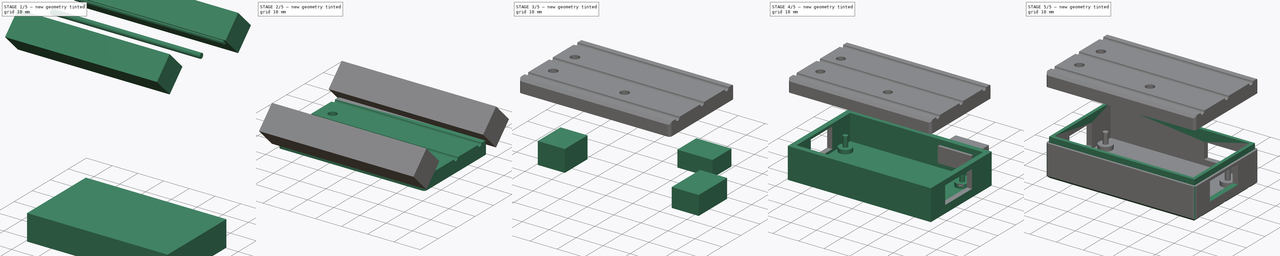
[diagram: build sequence overview — one tinted view per stage of 5, left to right]
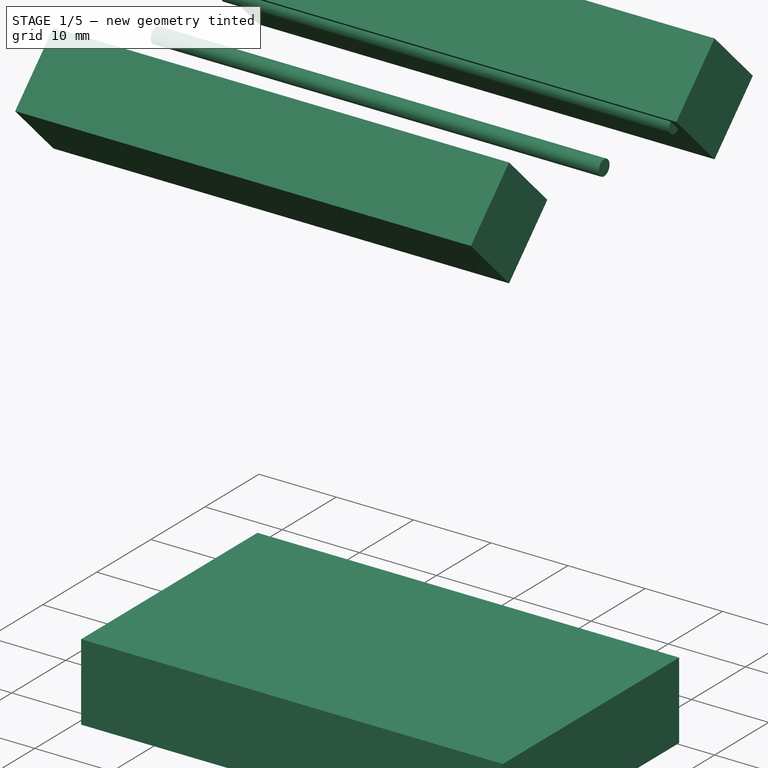
[diagram: stage 1 of 5 — iso view after this stage's code; geometry added in this stage tinted green]
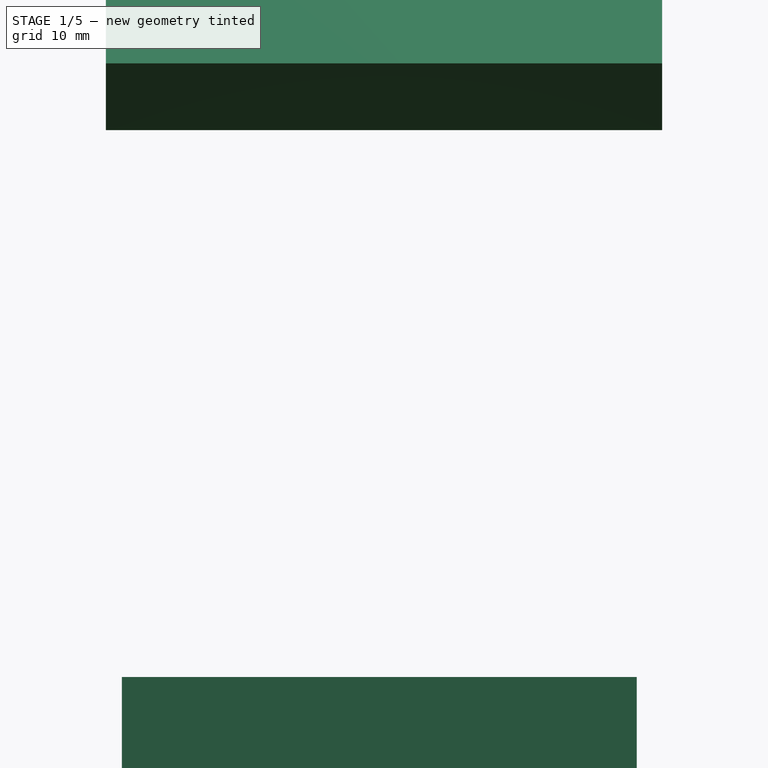
[diagram: stage 1 of 5 — front view after this stage's code; geometry added in this stage tinted green]
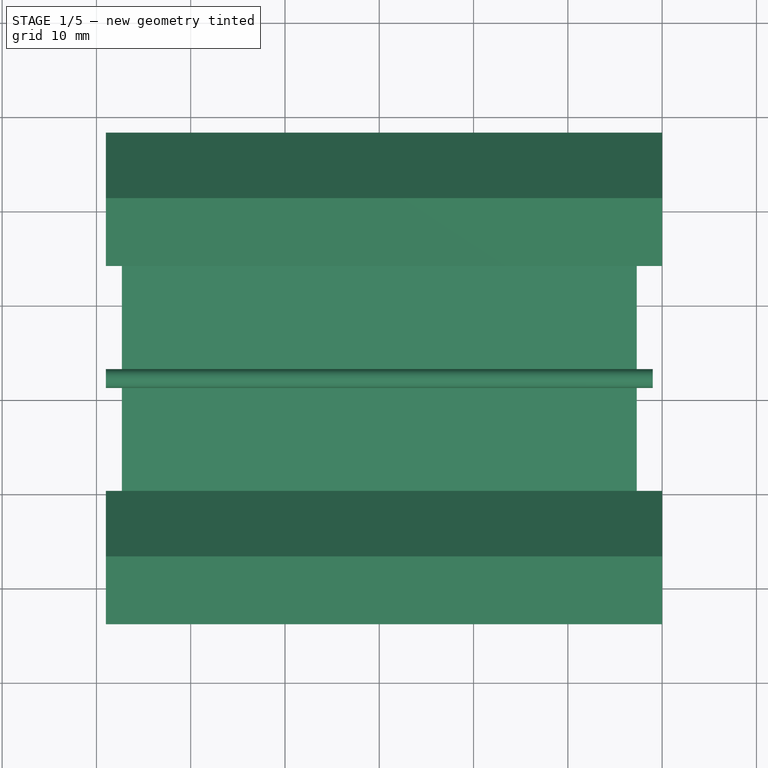
[diagram: stage 1 of 5 — top view after this stage's code; geometry added in this stage tinted green]
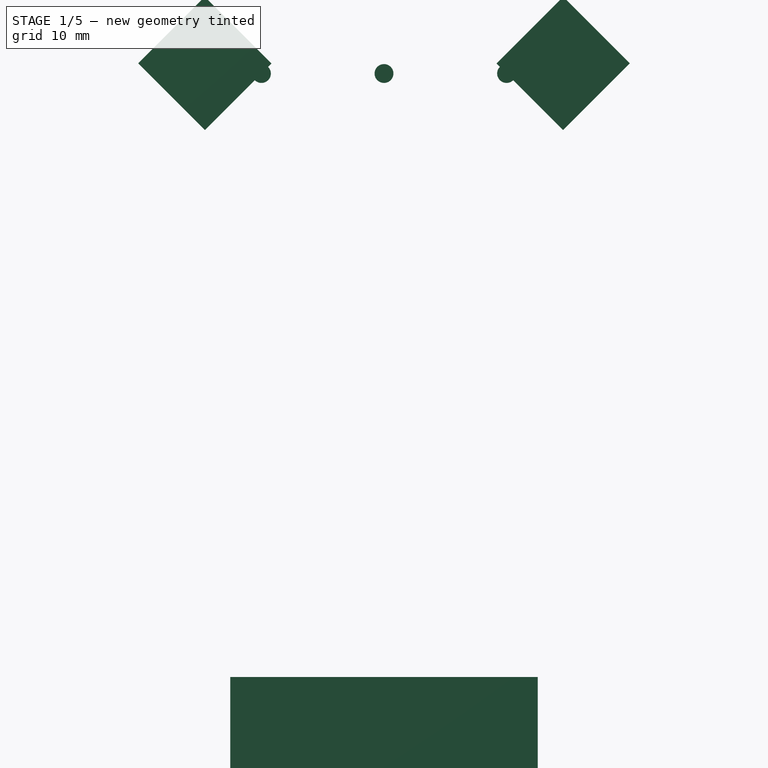
[diagram: stage 1 of 5 — right view after this stage's code; geometry added in this stage tinted green]
FCSTD DOCUMENT  (FreeCAD 0.16R6647 (Git))
Label: DataloggerCase
License: CreativeCommons Attribution-ShareAlike
LicenseURL: http://creativecommons.org/licenses/by-sa/4.0/
objects: Part::Cut×8, Part::Feature×7, Part::Box×7, Sketcher::SketchObject×5, PartDesign::Pad×4, Part::MultiFuse×2, Part::Thickness×1, PartDesign::Chamfer×1, PartDesign::Fillet×1, Part::Fillet×1, Part::Cylinder×1, PartDesign::Pocket×1
note: 44 computed .brp shape members not serialized (recipe doc carries the construction recipe); baked Part::Feature solids carry a one-line shape summary decoded from their .brp

FEATURE [Part::Box] Box004  label="Cube004"
  Height = 10
  Length = 54.6
  Placement = pos=(-27.3,-15.3,-40) rot=(0,0,1;0rad)
  Width = 32.6
FEATURE [Part::Cylinder] Cylinder
  Angle = 360
  Height = 58
  Placement = pos=(-29,14,34) rot=(0,1,0;1.5708rad)
  Radius = 1
FEATURE [Part::Feature] Cylinder001
  Placement = pos=(-29,1,34) rot=(0,1,0;1.5708rad)
  shape: bbox 58 x 2 x 2 mm, 3 faces (baked)
FEATURE [Part::Feature] Cylinder002
  Placement = pos=(-29,-12,34) rot=(0,1,0;1.5708rad)
  shape: bbox 58 x 2 x 2 mm, 3 faces (baked)
FEATURE [Part::MultiFuse] Fusion
  Shapes = -> [Cylinder,Cylinder001,Cylinder002]
FEATURE [Part::Box] Box006  label="Cube006"
  Height = 10
  Length = 59
  Placement = pos=(-29,-18,28) rot=(1,0,0;0.785398rad)
  Width = 10
FEATURE [Part::Feature] Box006001  label="Cube007"
  Placement = pos=(-29,20,28) rot=(1,0,0;0.785398rad)
  shape: bbox 59 x 14.14 x 14.14 mm, 6 faces (baked)
FEATURE [Part::MultiFuse] Fusion002
  Shapes = -> [Box006,Box006001]
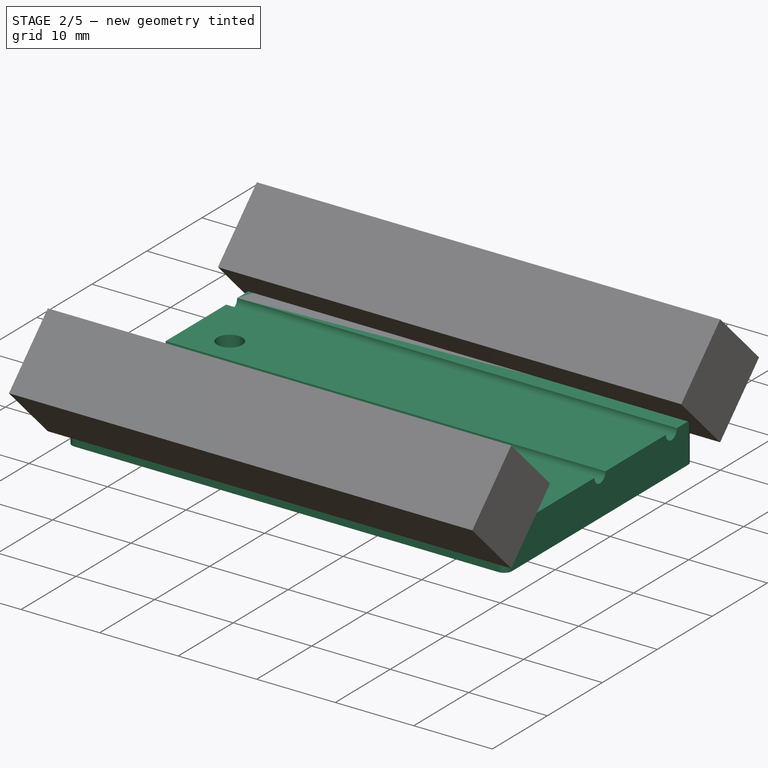
[diagram: stage 2 of 5 — iso view after this stage's code; geometry added in this stage tinted green]
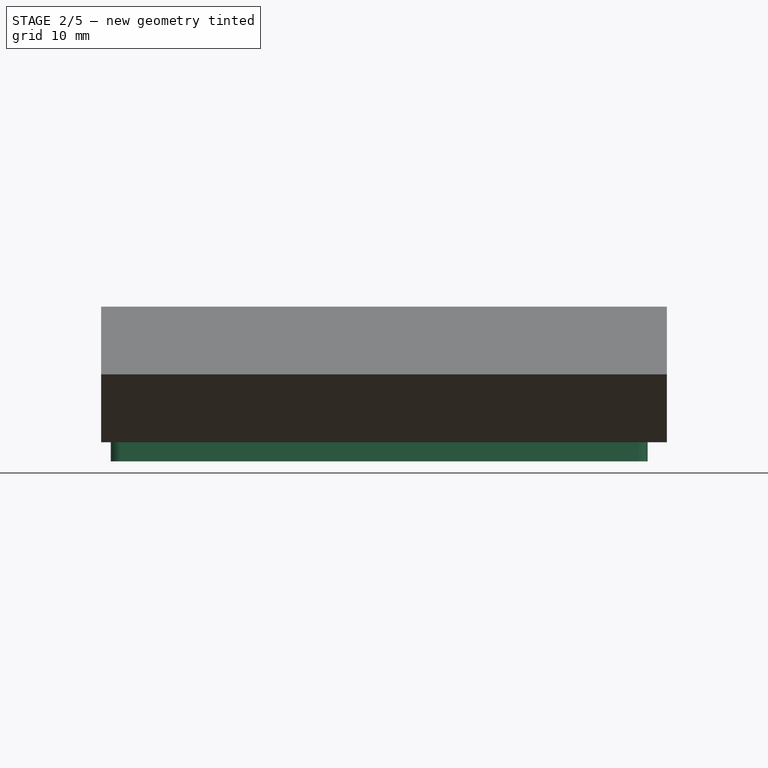
[diagram: stage 2 of 5 — front view after this stage's code; geometry added in this stage tinted green]
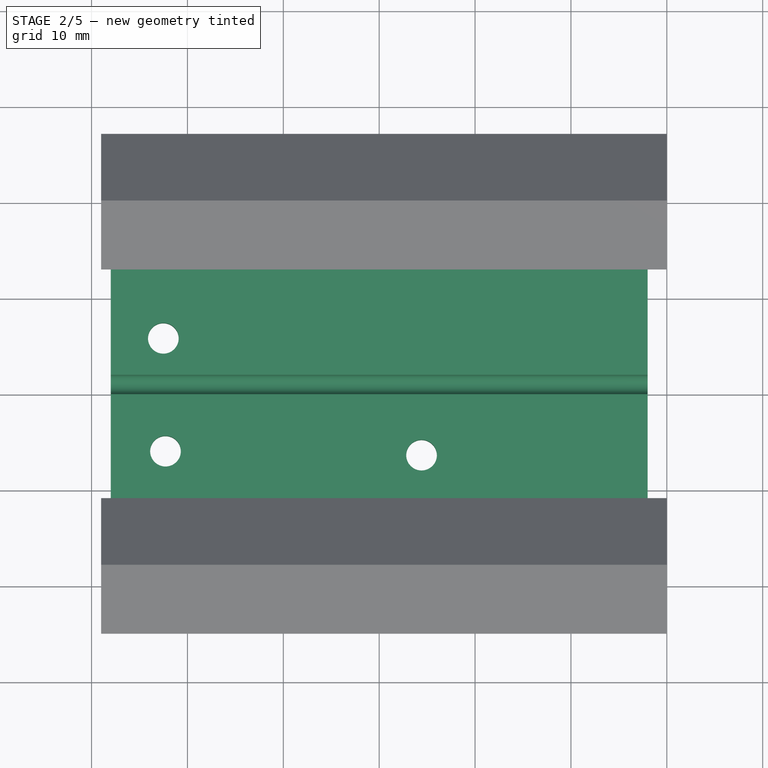
[diagram: stage 2 of 5 — top view after this stage's code; geometry added in this stage tinted green]
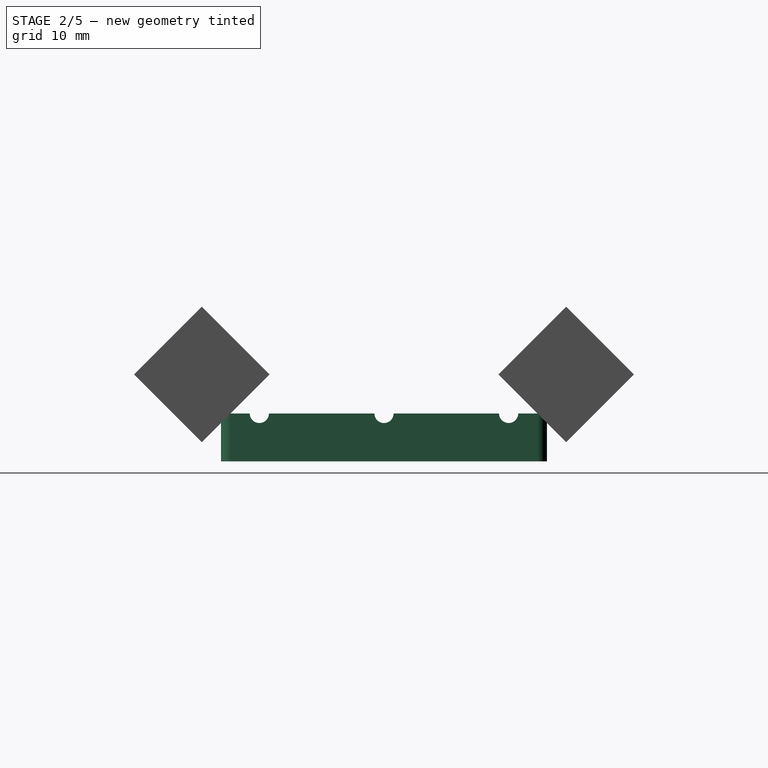
[diagram: stage 2 of 5 — right view after this stage's code; geometry added in this stage tinted green]
FEATURE [Sketcher::SketchObject] Sketch003
  Placement = pos=(0,0,27) rot=(0,0,1;0rad)
  sketch-geometry (9):
    g0: LineSegment [constr] StartX=25.4154 StartY=-6.36439 StartZ=0 EndX=4.41535 EndY=-6.36439 EndZ=0
    g1: LineSegment [constr] StartX=4.41535 StartY=-6.36439 StartZ=0 EndX=4.41535 EndY=-11.3644 EndZ=0
    g2: Circle CenterX=4.41535 CenterY=-6.36439 CenterZ=0 NormalX=0 NormalY=0 NormalZ=1 Radius=1.6
    g3: LineSegment [constr] StartX=-22.5163 StartY=11.3206 StartZ=0 EndX=-22.5163 EndY=5.82063 EndZ=0
    g4: LineSegment [constr] StartX=-22.5163 StartY=5.82063 StartZ=0 EndX=-25.5163 EndY=5.82063 EndZ=0
    g5: Circle CenterX=-22.5163 CenterY=5.82063 CenterZ=0 NormalX=0 NormalY=0 NormalZ=1 Radius=1.6
    g6: LineSegment [constr] StartX=-22.2915 StartY=-11.4521 StartZ=0 EndX=-22.2915 EndY=-5.95211 EndZ=0
    g7: LineSegment [constr] StartX=-22.2915 StartY=-5.95211 StartZ=0 EndX=-25.2915 EndY=-5.95211 EndZ=0
    g8: Circle CenterX=-22.2915 CenterY=-5.95211 CenterZ=0 NormalX=0 NormalY=0 NormalZ=1 Radius=1.6
  constraints (21):
    c: Horizontal(g0)
    c: DistanceX(g0,g0) = 21
    c: Coincident(g1,g0)
    c: Vertical(g1)
    c: DistanceY(g1,g1) = 5
    c: Coincident(g2,g0)
    c: Vertical(g3)
    c: Coincident(g4,g3)
    c: Horizontal(g4)
    c: DistanceY(g3,g3) = 5.5
    c: DistanceX(g4,g4) = 3
    c: Coincident(g5,g3)
    c: Vertical(g6)
    c: Coincident(g7,g6)
    c: Horizontal(g7)
    c: DistanceX(g7,g7) = 3
    c: DistanceY(g6,g6) = 5.5
    c: Coincident(g8,g6)
    c: Radius(g8) = 1.6
    c: Equal(g8,g5)
    c: Equal(g8,g2)
FEATURE [Part::Box] Box003  label="Cube003"
  Height = 5
  Length = 56
  Placement = pos=(-28,-16,-32) rot=(0,0,1;0rad)
  Width = 34
FEATURE [PartDesign::Pad] Pad001004
  Length = 15
  Length2 = 100
  Placement = pos=(0,0,27) rot=(0,0,1;0rad)
  Sketch = -> Sketch003
  Type = 0
FEATURE [Part::Cut] Cut002
  Base = -> Box003
  Tool = -> Box004
FEATURE [Part::Fillet] Fillet001
  Base = -> Cut002
  Edges = 4 edges r=1: [Edge1,Edge3,Edge6,Edge11]
  Placement = pos=(0,0,61) rot=(0,0,1;0rad)
FEATURE [Part::Cut] Cut003
  Base = -> Fillet001
  Tool = -> Pad001004
FEATURE [Part::Cut] Cut004
  Base = -> Cut003
  Placement = pos=(0,0,-3) rot=(0,0,1;0rad)
  Tool = -> Fusion
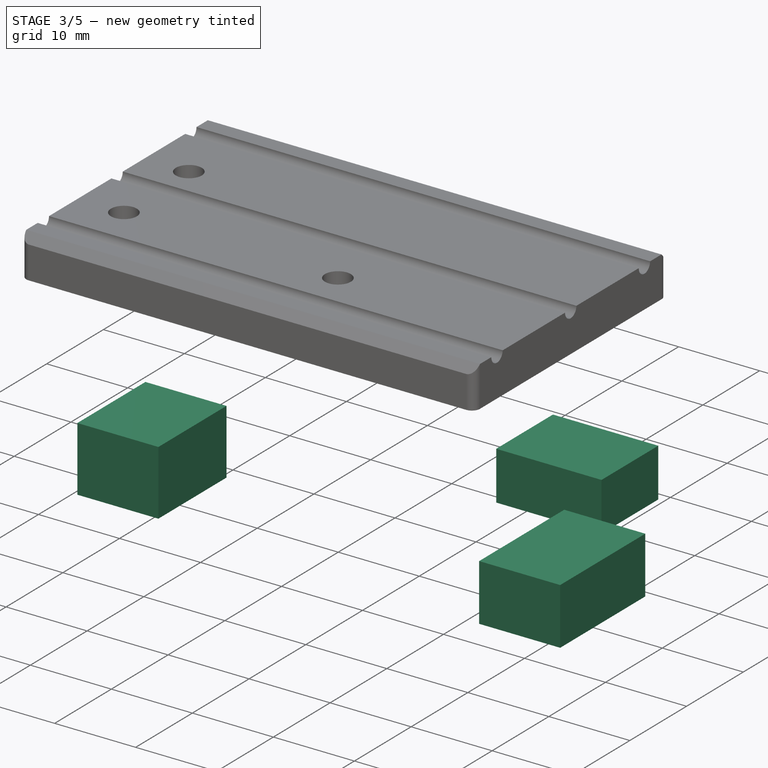
[diagram: stage 3 of 5 — iso view after this stage's code; geometry added in this stage tinted green]
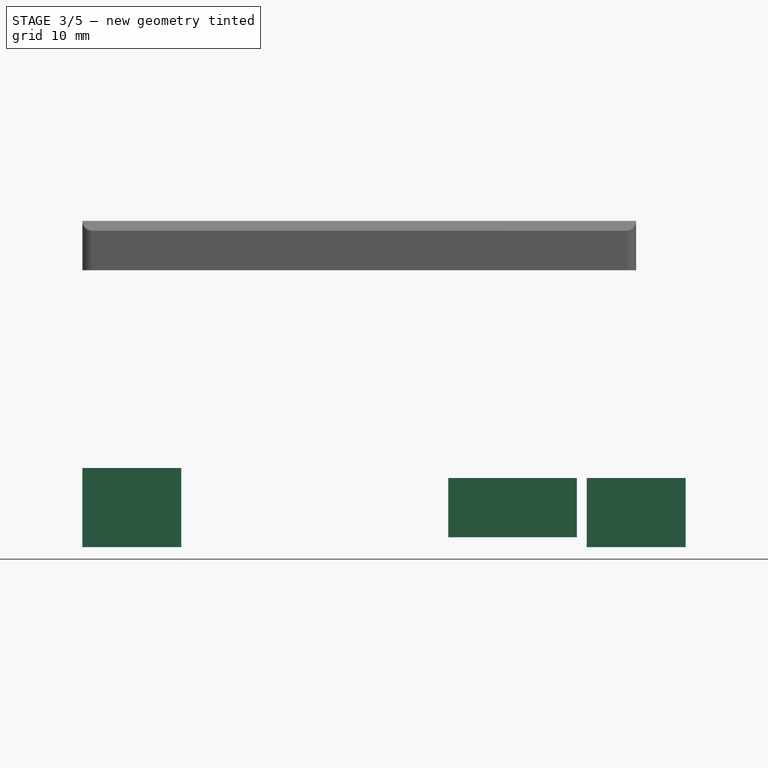
[diagram: stage 3 of 5 — front view after this stage's code; geometry added in this stage tinted green]
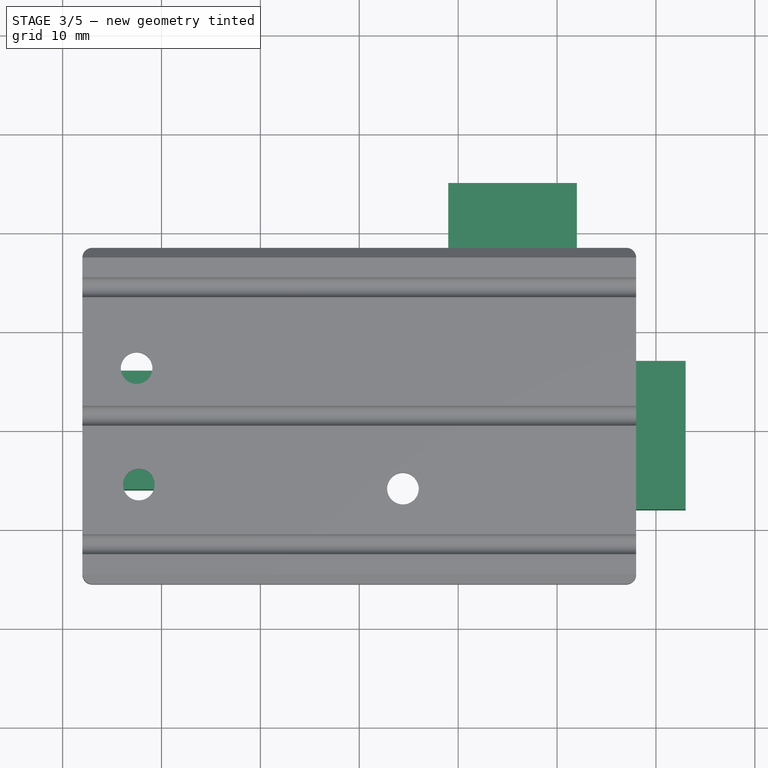
[diagram: stage 3 of 5 — top view after this stage's code; geometry added in this stage tinted green]
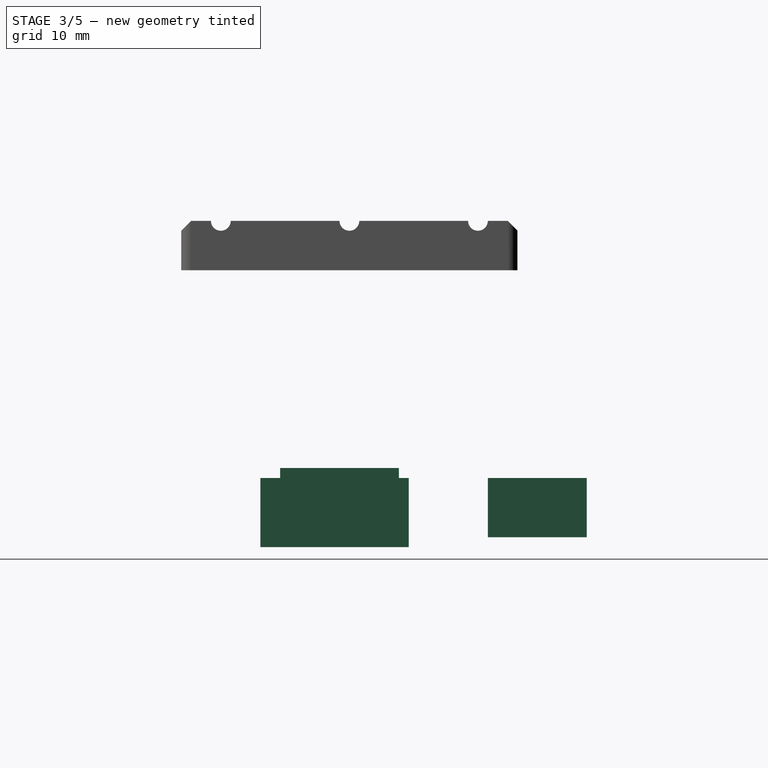
[diagram: stage 3 of 5 — right view after this stage's code; geometry added in this stage tinted green]
FEATURE [Part::Box] Box001  label="Cube001"
  Height = 8
  Length = 10
  Placement = pos=(-28,-6,-2) rot=(0,0,1;0rad)
  Width = 12
FEATURE [Part::Box] Box002  label="Cube002"
  Height = 7
  Length = 10
  Placement = pos=(23,-8,-2) rot=(0,0,1;0rad)
  Width = 15
FEATURE [Part::Box] Box005  label="Cube005"
  Height = 6
  Length = 13
  Placement = pos=(9,15,-1) rot=(0,0,1;0rad)
  Width = 10
FEATURE [Sketcher::SketchObject] Sketch004
  Placement = pos=(0,0,28) rot=(1,0,0;3.14159rad)
  Support = -> Cut004 [Face21]
  sketch-geometry (4):
    g0: LineSegment StartX=-25.6475 StartY=13.4964 StartZ=0 EndX=25.8503 EndY=13.4964 EndZ=0
    g1: LineSegment StartX=25.8503 StartY=13.4964 StartZ=0 EndX=25.8503 EndY=-15.6992 EndZ=0
    g2: LineSegment StartX=25.8503 StartY=-15.6992 StartZ=0 EndX=-25.6475 EndY=-15.6992 EndZ=0
    g3: LineSegment StartX=-25.6475 StartY=-15.6992 StartZ=0 EndX=-25.6475 EndY=13.4964 EndZ=0
  constraints (8):
    c: Coincident(g0,g1)
    c: Coincident(g1,g2)
    c: Coincident(g2,g3)
    c: Coincident(g3,g0)
    c: Horizontal(g0)
    c: Horizontal(g2)
    c: Vertical(g1)
    c: Vertical(g3)
FEATURE [PartDesign::Pocket] Pocket
  Length = 1
  Placement = pos=(0,0,-3) rot=(0,0,1;0rad)
  Sketch = -> Sketch004
  Type = 0
FEATURE [Part::Cut] Cut007
  Base = -> Pocket
  Tool = -> Fusion002
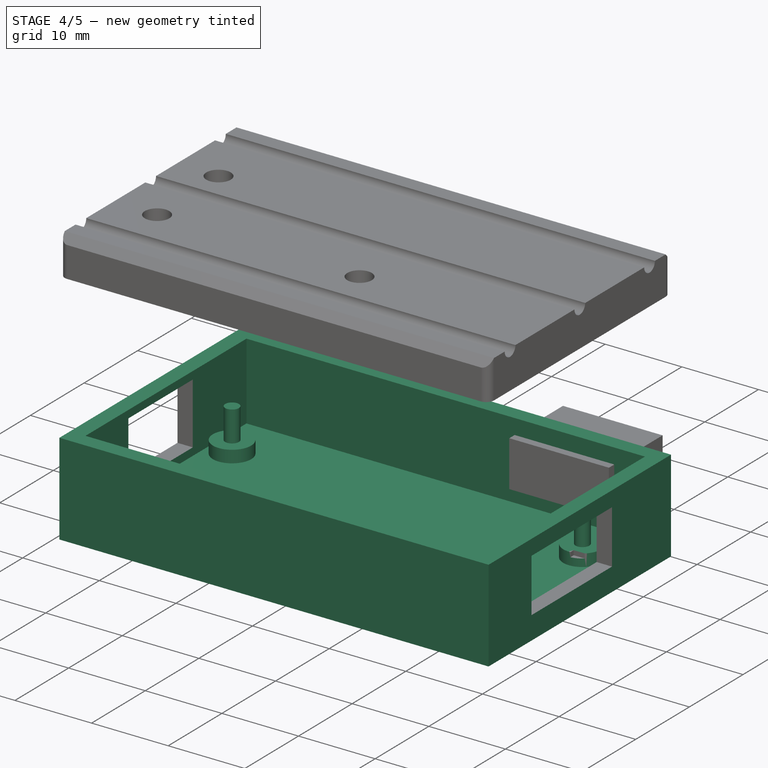
[diagram: stage 4 of 5 — iso view after this stage's code; geometry added in this stage tinted green]
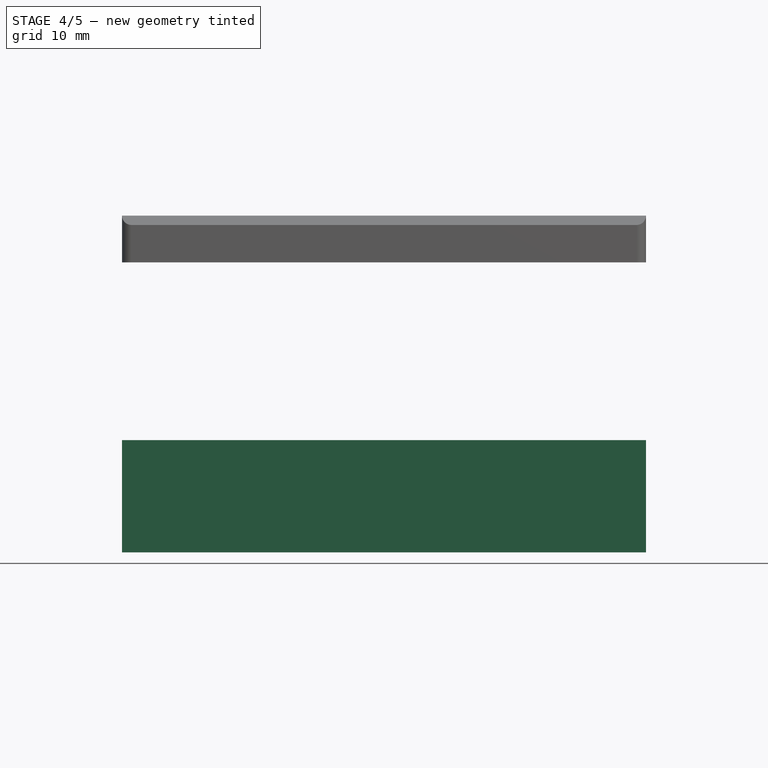
[diagram: stage 4 of 5 — front view after this stage's code; geometry added in this stage tinted green]
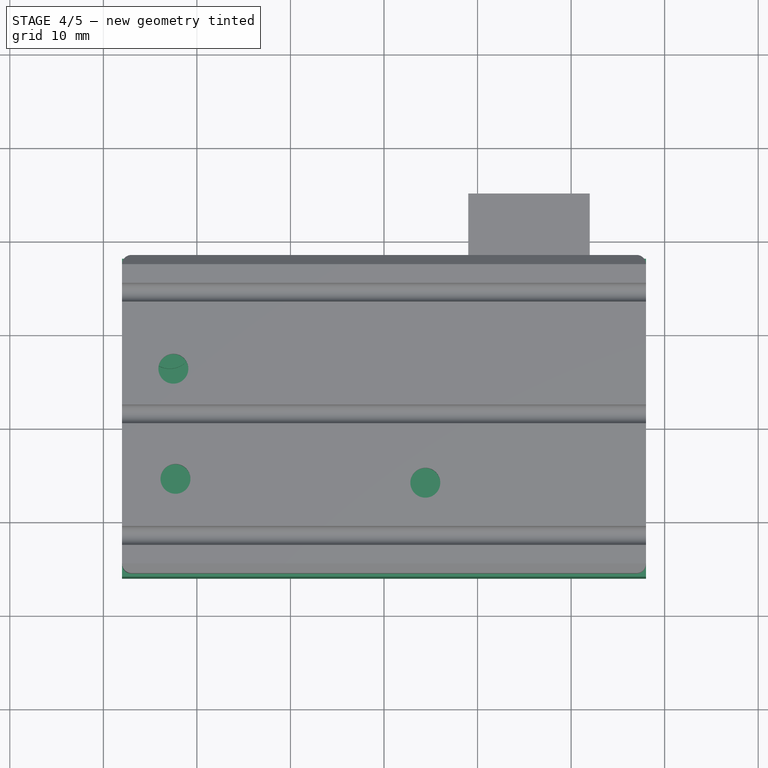
[diagram: stage 4 of 5 — top view after this stage's code; geometry added in this stage tinted green]
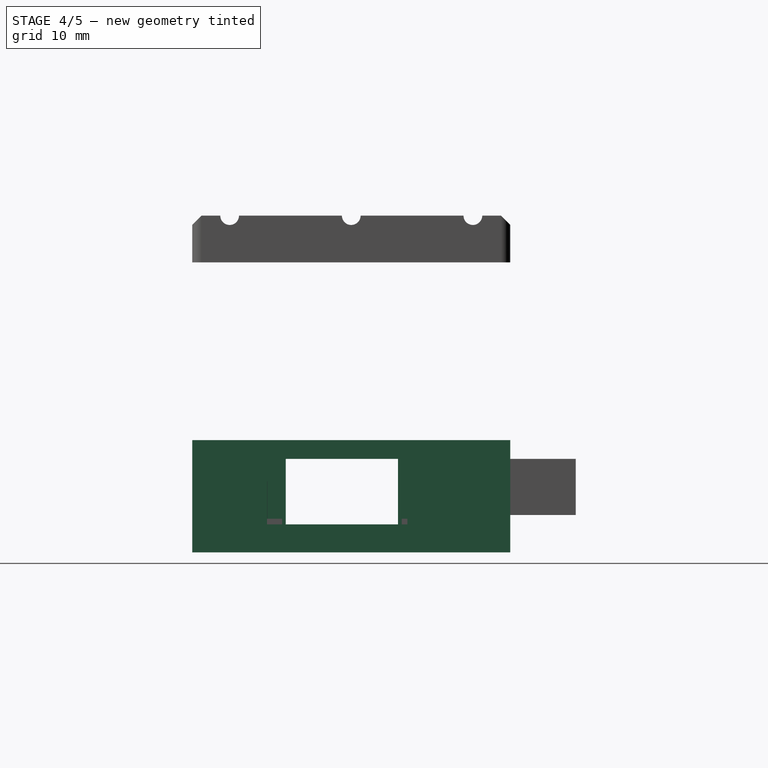
[diagram: stage 4 of 5 — right view after this stage's code; geometry added in this stage tinted green]
FEATURE [Part::Feature] Compound002  label="datalogger_feather"
  Placement = pos=(0,0,-0.25) rot=(0,0,1;0rad)
  shape: bbox 50.8 x 22.86 x 7.264 mm, 2741 faces, 11 solids (baked)
FEATURE [Part::Feature] Pad001001  label="push_b_long"
  Placement = pos=(-16.0257,-5.05629,0.83) rot=(0,0,1;0rad)
  shape: bbox 3.5 x 3 x 41.57 mm, 8 faces (baked)
FEATURE [Part::Feature] Part__Feature  label="SW3dPS-Micro_SD"
  Placement = pos=(18.0911,-1.25979,1.58358) rot=(0,0.707107,0.707107;3.14159rad)
  shape: bbox 15 x 11.43 x 1.06 mm, 373 faces (baked)
FEATURE [Part::Box] Box  label="Cube"
  Height = 10
  Length = 52
  Placement = pos=(-26,-14,-3) rot=(0,0,1;0rad)
  Width = 30
FEATURE [Part::Thickness] Thickness
  Faces = -> Box [Face6]
  Intersection = false
  Join = 2
  Mode = 0
  SelfIntersection = false
  Value = 2
FEATURE [Sketcher::SketchObject] Sketch
  Placement = pos=(0,0,-3) rot=(0,0,1;0rad)
  Support = -> Thickness [Face5]
  sketch-geometry (7):
    g0: Circle CenterX=-22.9056 CenterY=8.89613 CenterZ=0 NormalX=0 NormalY=0 NormalZ=1 Radius=2.5
    g1: Circle CenterX=22.8144 CenterY=8.89613 CenterZ=0 NormalX=0 NormalY=0 NormalZ=1 Radius=2.5
    g2: Circle CenterX=-22.9056 CenterY=-8.88387 CenterZ=0 NormalX=0 NormalY=0 NormalZ=1 Radius=2.5
    g3: Circle CenterX=22.8144 CenterY=-8.88387 CenterZ=0 NormalX=0 NormalY=0 NormalZ=1 Radius=2.5
    g4: LineSegment [constr] StartX=-22.9056 StartY=8.89613 StartZ=0 EndX=-22.9056 EndY=-8.88387 EndZ=0
    g5: LineSegment [constr] StartX=22.8144 StartY=8.89613 StartZ=0 EndX=-22.9056 EndY=8.89613 EndZ=0
    g6: LineSegment [constr] StartX=22.8144 StartY=8.89613 StartZ=0 EndX=22.8144 EndY=-8.88387 EndZ=0
  constraints (16):
    c: Radius(g0) = 2.5  'Standoff'
    c: Equal(g0,g1)
    c: Equal(g0,g3)
    c: Equal(g0,g2)
    c: Coincident(g4,g0)
    c: Coincident(g4,g2)
    c: Vertical(g4)
    c: DistanceY(g4,g4) = 17.78
    c: Coincident(g5,g1)
    c: Coincident(g5,g0)
    c: Horizontal(g5)
    c: DistanceX(g5,g5) = 45.72
    c: Coincident(g6,g1)
    c: Coincident(g6,g3)
    c: Vertical(g6)
    c: Equal(g6,g4)
FEATURE [PartDesign::Pad] Pad
  Length = 1.6
  Length2 = 100
  Sketch = -> Sketch
  Type = 0
FEATURE [Sketcher::SketchObject] Sketch001
  ExternalGeometry = -> [Pad]
  Placement = pos=(0,0,-1.4) rot=(0,0,1;0rad)
  Support = -> Pad [Face16]
  sketch-geometry (4):
    g0: Circle CenterX=-22.9056 CenterY=8.89613 CenterZ=0 NormalX=0 NormalY=0 NormalZ=1 Radius=0.9
    g1: Circle CenterX=22.8144 CenterY=8.89613 CenterZ=0 NormalX=0 NormalY=0 NormalZ=1 Radius=0.9
    g2: Circle CenterX=22.8144 CenterY=-8.88387 CenterZ=0 NormalX=0 NormalY=0 NormalZ=1 Radius=0.9
    g3: Circle CenterX=-22.9056 CenterY=-8.88387 CenterZ=0 NormalX=0 NormalY=0 NormalZ=1 Radius=0.9
  constraints (8):
    c: Coincident(g0,g-3)
    c: Coincident(g1,g-4)
    c: Coincident(g2,g-5)
    c: Coincident(g3,g-6)
    c: Radius(g0) = 0.9
    c: Equal(g0,g1)
    c: Equal(g0,g2)
    c: Equal(g0,g3)
FEATURE [PartDesign::Pad] Pad001002
  Length = 4
  Length2 = 100
  Sketch = -> Sketch001
  Type = 0
FEATURE [Part::Cut] Cut
  Base = -> Pad001002
  Tool = -> Box001
FEATURE [Part::Cut] Cut001
  Base = -> Cut
  Tool = -> Box002
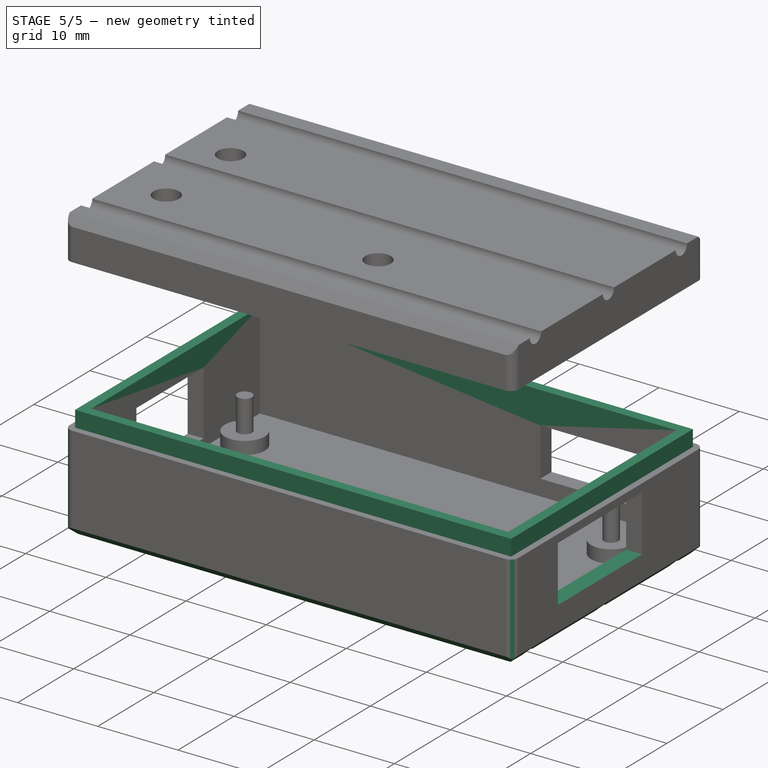
[diagram: stage 5 of 5 — iso view after this stage's code; geometry added in this stage tinted green]
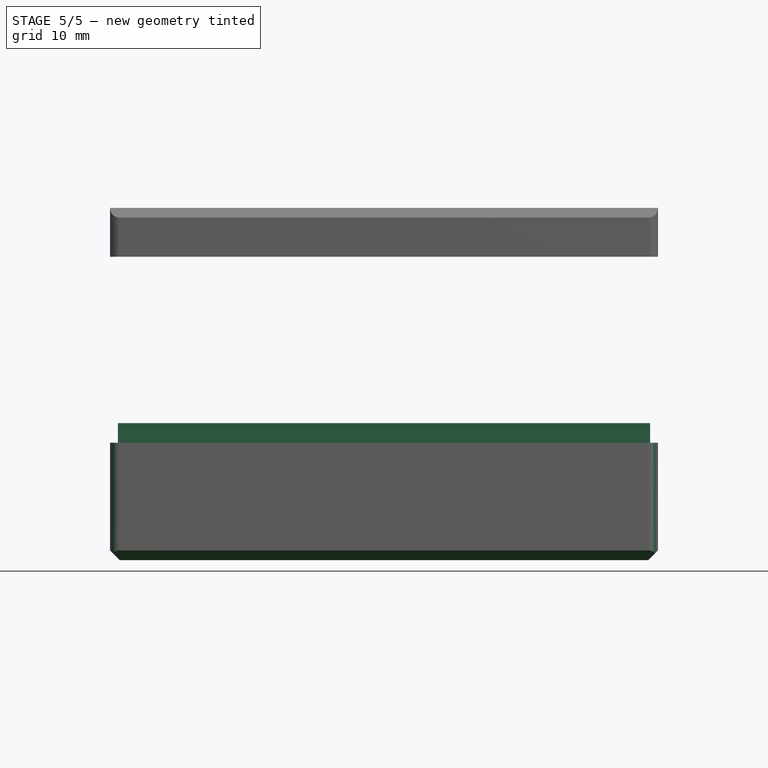
[diagram: stage 5 of 5 — front view after this stage's code; geometry added in this stage tinted green]
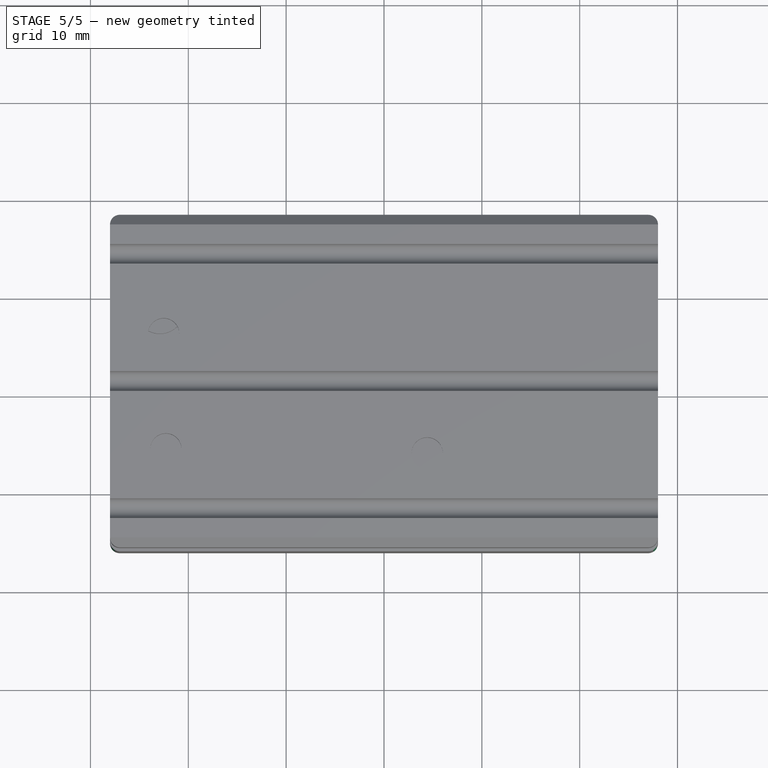
[diagram: stage 5 of 5 — top view after this stage's code; geometry added in this stage tinted green]
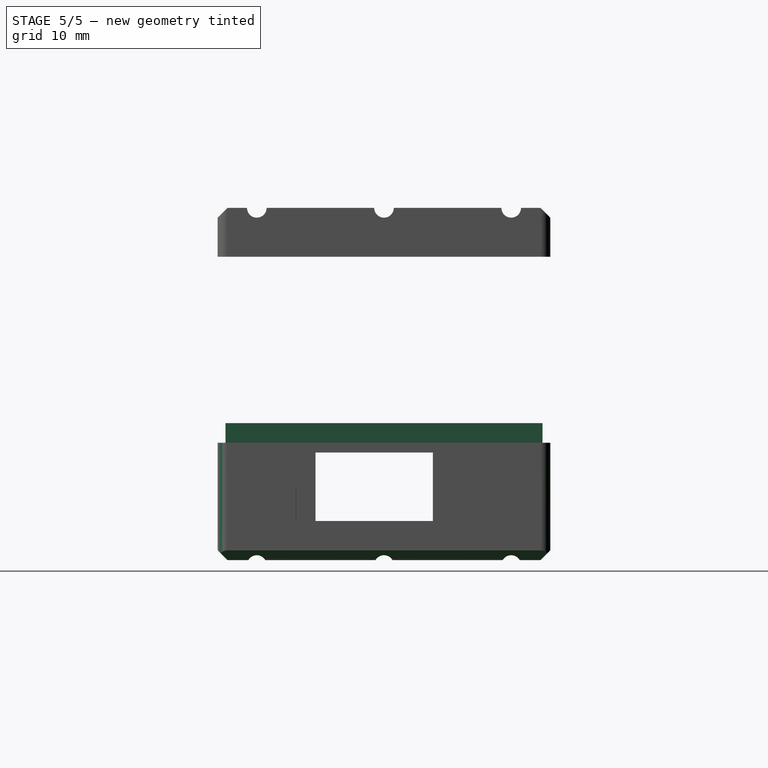
[diagram: stage 5 of 5 — right view after this stage's code; geometry added in this stage tinted green]
FEATURE [Sketcher::SketchObject] Sketch002
  ExternalGeometry = -> [Cut001]
  Placement = pos=(0,0,7) rot=(0,0,1;0rad)
  Support = -> Cut001 [Face3]
  sketch-geometry (8):
    g0: LineSegment StartX=-26 StartY=16 StartZ=0 EndX=26 EndY=16 EndZ=0
    g1: LineSegment StartX=26 StartY=16 StartZ=0 EndX=26 EndY=-14 EndZ=0
    g2: LineSegment StartX=26 StartY=-14 StartZ=0 EndX=-26 EndY=-14 EndZ=0
    g3: LineSegment StartX=-26 StartY=-14 StartZ=0 EndX=-26 EndY=16 EndZ=0
    g4: LineSegment StartX=-27.2 StartY=17.2 StartZ=0 EndX=27.2 EndY=17.2 EndZ=0
    g5: LineSegment StartX=27.2 StartY=17.2 StartZ=0 EndX=27.2 EndY=-15.2 EndZ=0
    g6: LineSegment StartX=27.2 StartY=-15.2 StartZ=0 EndX=-27.2 EndY=-15.2 EndZ=0
    g7: LineSegment StartX=-27.2 StartY=-15.2 StartZ=0 EndX=-27.2 EndY=17.2 EndZ=0
  constraints (23):
    c: Horizontal(g0)
    c: Coincident(g1,g0)
    c: Vertical(g1)
    c: Coincident(g2,g1)
    c: Horizontal(g2)
    c: Coincident(g3,g2)
    c: Vertical(g3)
    c: Coincident(g3,g0)
    c: Coincident(g0,g-6)
    c: Coincident(g0,g-4)
    c: Coincident(g2,g-6)
    c: Horizontal(g4)
    c: Coincident(g5,g4)
    c: Vertical(g5)
    c: Coincident(g6,g5)
    c: Horizontal(g6)
    c: Coincident(g7,g6)
    c: Vertical(g7)
    c: Coincident(g7,g4)
    c: Distance(g0,g4) = 1.2
    c: Distance(g2,g7) = 1.2
    c: Distance(g1,g6) = 1.2
    c: Distance(g0,g5) = 1.2
FEATURE [PartDesign::Pad] Pad001003
  Length = 2
  Length2 = 100
  Sketch = -> Sketch002
  Type = 0
FEATURE [PartDesign::Chamfer] Chamfer
  Base = -> Pad001003 [Edge58,Edge52,Edge60,Edge62]
  Size = 1
FEATURE [PartDesign::Fillet] Fillet
  Base = -> Chamfer [Edge11,Edge22,Edge4,Edge1]
  Radius = 1
FEATURE [Part::Feature] Fusion001
  Placement = pos=(0,0,-39.5) rot=(0,0,1;0rad)
  shape: bbox 58 x 28 x 2 mm, 9 faces, 3 solids (baked)
FEATURE [Part::Cut] Cut005
  Base = -> Fillet
  Tool = -> Fusion001
FEATURE [Part::Cut] Cut006
  Base = -> Cut005
  Tool = -> Box005
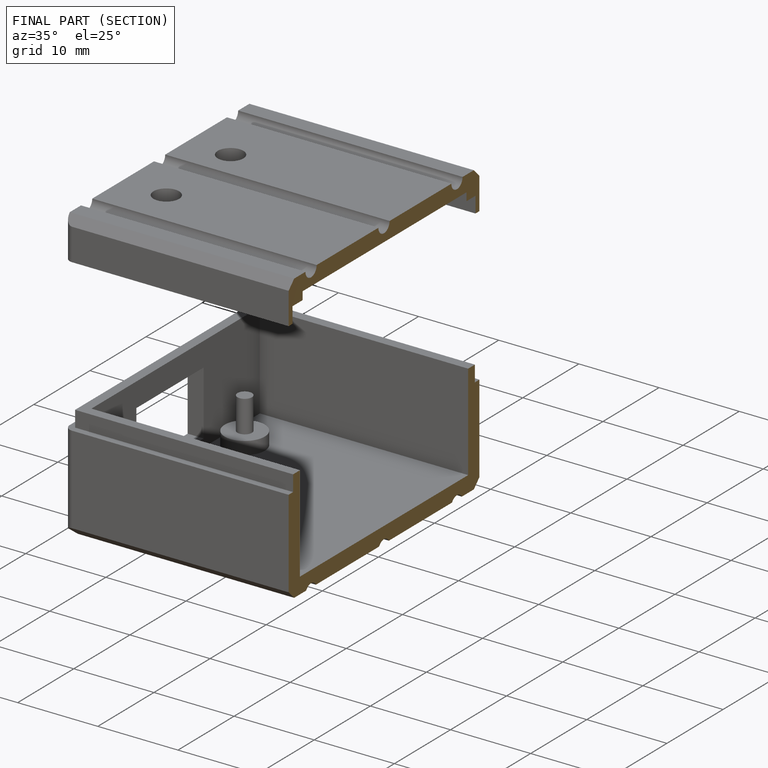
[diagram: finished part — half-section view (interior)]
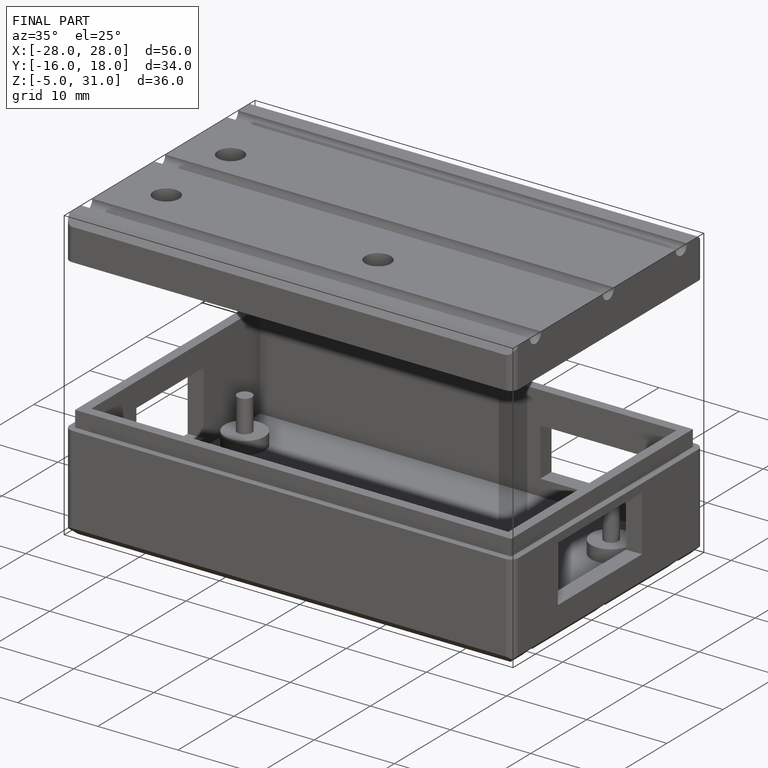
[diagram: finished part — iso view with bounding-box wireframe]
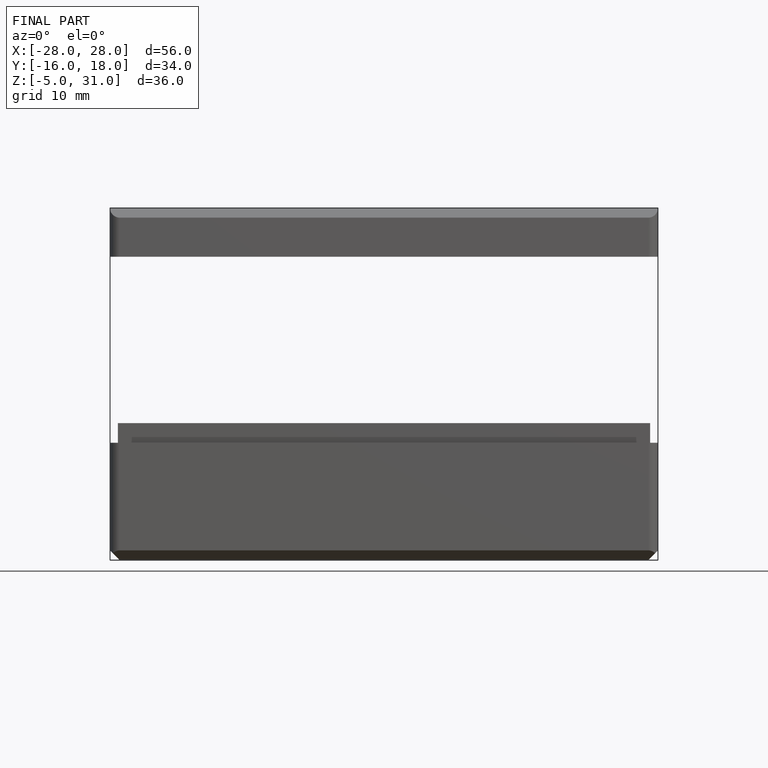
[diagram: finished part — front view with bounding-box wireframe]
